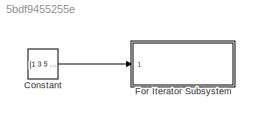
MODEL slx_5bdf9455255e
KIND model
CONFIG AbsTol = auto
CONFIG FixedStep = auto
CONFIG MaxStep = auto
CONFIG MinStep = auto
CONFIG RelTol = 1e-3
CONFIG SampleTimeConstraint = Unconstrained
CONFIG Solver = FixedStepDiscrete
CONFIG SolverMode = Auto
CONFIG SolverName = FixedStepDiscrete
CONFIG StartTime = 0.0
CONFIG StopTime = 10.0
BLOCK [Constant] Constant
  Value = [1  3   5  6  0]
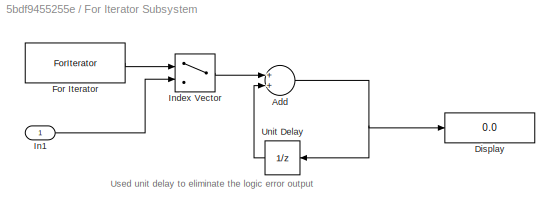
BLOCK [SubSystem] For Iterator Subsystem
  Ports = [1]
  RequestExecContextInheritance = off
  TreatAsAtomicUnit = on
  Variant = off
BLOCK [Sum] For Iterator Subsystem/Add
  InputSameDT = off
  OutDataTypeStr = Inherit: Inherit via internal rule
  Ports = [2, 1]
  SaturateOnIntegerOverflow = off
BLOCK [Display] For Iterator Subsystem/Display
  Decimation = 1
  Ports = [1]
BLOCK [ForIterator] For Iterator Subsystem/For Iterator
  IndexMode = Zero-based
  Ports = [0, 1]
  ResetStates = reset
BLOCK [Inport] For Iterator Subsystem/In1
  IconDisplay = Port number
  PortDimensions = 5
BLOCK [MultiPortSwitch] For Iterator Subsystem/Index Vector
  DataPortOrder = Zero-based contiguous
  InputSameDT = off
  Inputs = 1
  Ports = [2, 1]
  SaturateOnIntegerOverflow = off
  zeroidx = on
BLOCK [UnitDelay] For Iterator Subsystem/Unit Delay
  InputProcessing = Elements as channels (sample based)
  SampleTime = -1
ANNOTATION For Iterator Subsystem: Used unit delay to eliminate the logic error output
LINE Constant:1 -> For Iterator Subsystem:1
NET For Iterator Subsystem/Add:1 -> For Iterator Subsystem/Display:1, For Iterator Subsystem/Unit Delay:1
LINE For Iterator Subsystem/For Iterator:1 -> For Iterator Subsystem/Index Vector:1
LINE For Iterator Subsystem/In1:1 -> For Iterator Subsystem/Index Vector:2
LINE For Iterator Subsystem/Index Vector:1 -> For Iterator Subsystem/Add:1
LINE For Iterator Subsystem/Unit Delay:1 -> For Iterator Subsystem/Add:2
note: NET lines group one-source signal fan-out (src -> all destinations, sorted); 1:1 wires keep LINE
